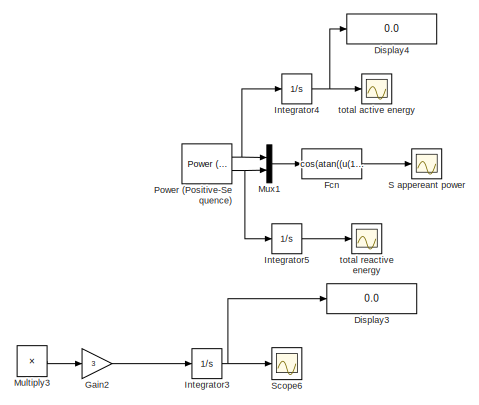
[diagram: root canvas - part 1/7, top center region]
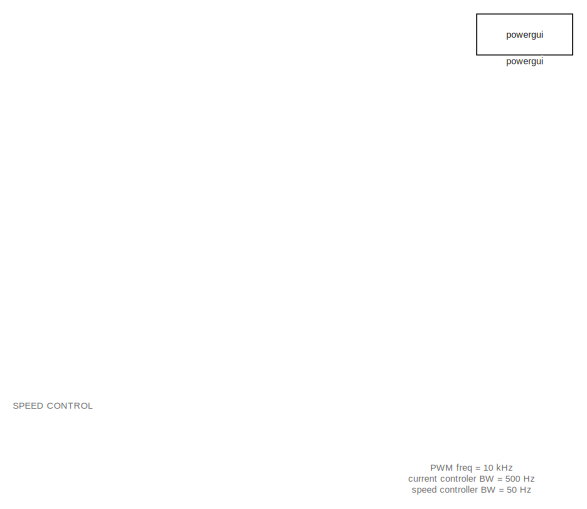
[diagram: root canvas - part 2/7, middle right region]
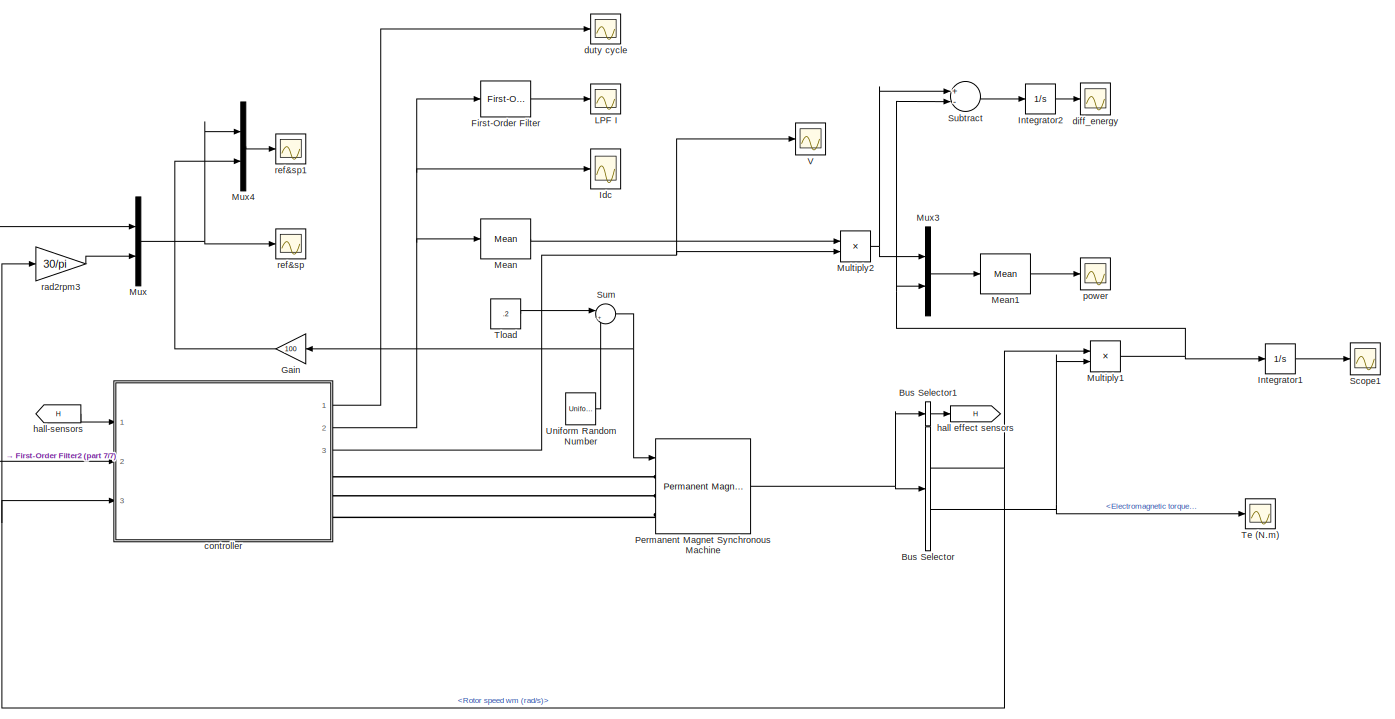
[diagram: root canvas - part 3/7, bottom right region]
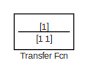
[diagram: root canvas - part 4/7, central region]
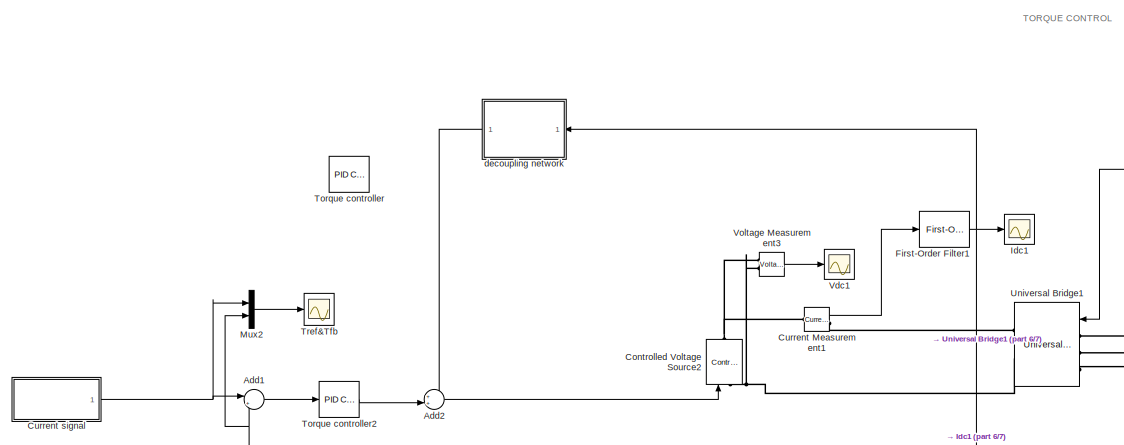
[diagram: root canvas - part 5/7, bottom left region]
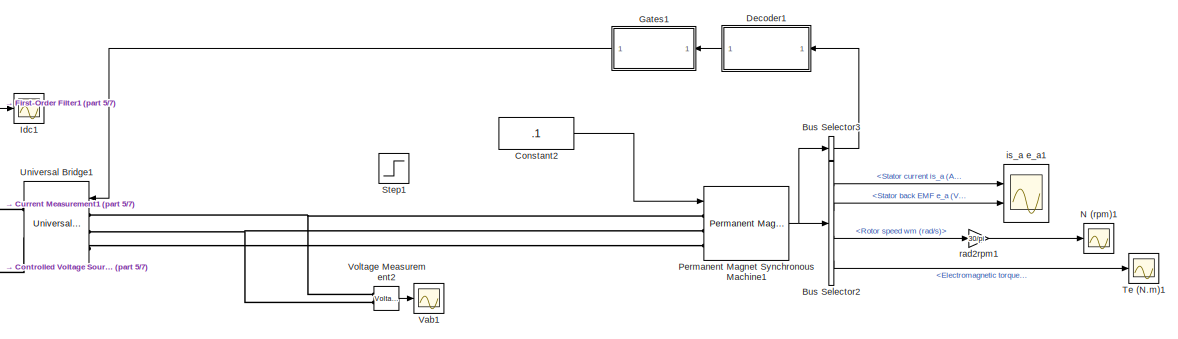
[diagram: root canvas - part 6/7, bottom left region]
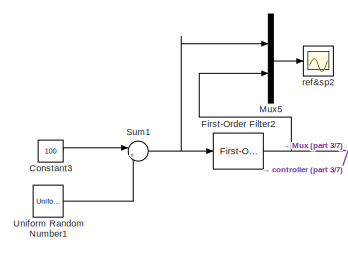
[diagram: root canvas - part 7/7, bottom right region]
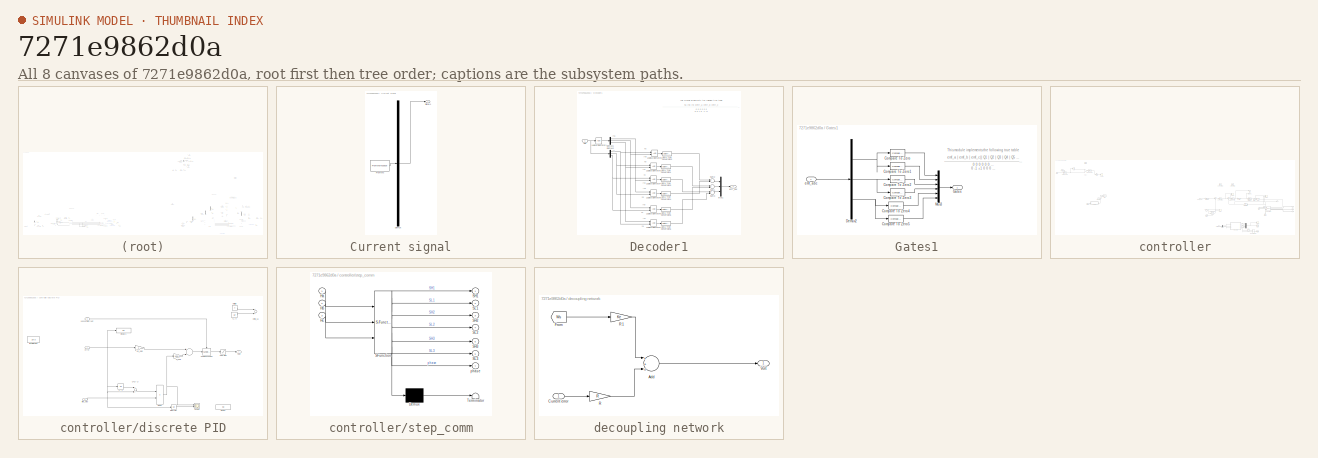
[diagram: thumbnail index - all 8 canvases of the model, root first then tree order]
MODEL slx_7271e9862d0a
KIND model
CONFIG AbsTol = auto
CONFIG EnableMultiTasking = on
CONFIG FixedStep = Ts
CONFIG InitFcn = Power = 425;\n\nR=.64;\nL=1e-3;\nJ=.142e-3;\nB=0;\nKm=1.194;\nVdc=60;\n\nTs=1e-6;\nP=16;\n\n\n\n\n\n\n\n\n\n\n\n\n\n\n\n\n\n
CONFIG MaxStep = .000001
CONFIG MinStep = auto
CONFIG RelTol = 1e-3
CONFIG SampleTimeConstraint = Unconstrained
CONFIG Solver = ode45
CONFIG SolverName = ode45
CONFIG StartTime = 0.0
CONFIG StopTime = 2
BLOCK [Sum] Add1
  Commented = on
  IconShape = round
  InputSameDT = off
  Inputs = |+-
  OutDataTypeStr = Inherit: Inherit via internal rule
  Ports = [2, 1]
  SaturateOnIntegerOverflow = off
BLOCK [Sum] Add2
  Commented = on
  IconShape = round
  InputSameDT = off
  Inputs = ++|
  OutDataTypeStr = Inherit: Inherit via internal rule
  Ports = [2, 1]
  SaturateOnIntegerOverflow = off
BLOCK [BusSelector] Bus Selector
  OutputAsBus = off
  OutputSignals = Rotor speed wm (rad/s),Electromagnetic torque Te (N*m)
  Ports = [1, 2]
BLOCK [BusSelector] Bus Selector1
  OutputAsBus = on
  OutputSignals = Hall effect signal h_a,Hall effect signal h_b,Hall effect signal h_c
  Ports = [1, 1]
BLOCK [BusSelector] Bus Selector2
  Commented = on
  OutputAsBus = off
  OutputSignals = Stator current is_a (A),Stator back EMF e_a (V),Rotor speed wm (rad/s),Electromagnetic torque Te (N*m)
  Ports = [1, 4]
BLOCK [BusSelector] Bus Selector3
  Commented = on
  OutputAsBus = on
  OutputSignals = Hall effect signal h_a,Hall effect signal h_b,Hall effect signal h_c
  Ports = [1, 1]
BLOCK [Constant] Constant2
  Commented = on
  Value = .1
BLOCK [Constant] Constant3
  Value = 100
BLOCK [Reference] Controlled Voltage Source2  REF=powerlib/Electrical
Sources/Controlled Voltage Source
  Commented = on
  Ports = [1, 0, 0, 0, 0, 1, 1]
  SourceBlock = powerlib/Electrical\nSources/Controlled Voltage Source
  SourceProductBaseCode = PS
  SourceProductName = Simscape Power Systems
  SourceType = Controlled Voltage Source
BLOCK [Reference] Current Measurement1  REF=powerlib/Measurements/Current Measurement
  Commented = on
  Ports = [0, 1, 0, 0, 0, 1, 1]
  SourceBlock = powerlib/Measurements/Current Measurement
  SourceProductBaseCode = PS
  SourceProductName = Simscape Power Systems
  SourceType = Current Measurement
BLOCK [SubSystem] Current signal
  ClipboardFcn = sigbuilder_block('clipboard');
  CloseFcn = sigbuilder_block('close');
  Commented = on
  ContinueFcn = sigbuilder_block('continue');
  CopyFcn = sigbuilder_block('copy');
  DeleteFcn = sigbuilder_block('delete');
  LoadFcn = sigbuilder_block('load');
  MaskHideContents = on
  ModelCloseFcn = sigbuilder_block('modelClose');
  NameChangeFcn = sigbuilder_block('namechange');
  OpenFcn = sigbuilder_block('open',[437.25 180 550.5 395.25 ]);
  PauseFcn = sigbuilder_block('pause');
  Ports = [0, 1]
  PreSaveFcn = sigbuilder_block('preSave');
  RequestExecContextInheritance = off
  StartFcn = sigbuilder_block('start');
  StopFcn = sigbuilder_block('stop');
  Tag = STV Subsys
BLOCK [Demux] Current signal/Demux
  Outputs = 1
  Ports = [1, 1]
  Tag = STV Demux
BLOCK [FromWorkspace] Current signal/FromWs
  SampleTime = 0
  Tag = STV FromWs
  VariableName = tuvar
  ZeroCross = on
BLOCK [Outport] Current signal/Signal 1
  IconDisplay = Port number
  Tag = STV Outport
BLOCK [SubSystem] Decoder1
  Commented = on
  Ports = [1, 1]
  RequestExecContextInheritance = off
BLOCK [DataTypeConversion] Decoder1/Data Type Conversion1
  RndMeth = Floor
  SaturateOnIntegerOverflow = off
BLOCK [DataTypeConversion] Decoder1/Data Type Conversion2
  RndMeth = Floor
  SaturateOnIntegerOverflow = off
BLOCK [DataTypeConversion] Decoder1/Data Type Conversion3
  RndMeth = Floor
  SaturateOnIntegerOverflow = off
BLOCK [DataTypeConversion] Decoder1/Data Type Conversion4
  RndMeth = Floor
  SaturateOnIntegerOverflow = off
BLOCK [DataTypeConversion] Decoder1/Data Type Conversion5
  RndMeth = Floor
  SaturateOnIntegerOverflow = off
BLOCK [DataTypeConversion] Decoder1/Data Type Conversion6
  RndMeth = Floor
  SaturateOnIntegerOverflow = off
BLOCK [Demux] Decoder1/Demux1
  DisplayOption = bar
  Outputs = 3
  Ports = [1, 3]
BLOCK [Demux] Decoder1/Demux2
  DisplayOption = bar
  Outputs = 3
  Ports = [1, 3]
BLOCK [Inport] Decoder1/Hall 
  IconDisplay = Port number
BLOCK [Logic] Decoder1/Logical Operator1
  AllPortsSameDT = off
  Operator = NOT
  OutDataTypeStr = boolean
  Ports = [1, 1]
BLOCK [Logic] Decoder1/Logical Operator2
  AllPortsSameDT = off
  OutDataTypeStr = boolean
  Ports = [2, 1]
BLOCK [Logic] Decoder1/Logical Operator3
  AllPortsSameDT = off
  OutDataTypeStr = boolean
  Ports = [2, 1]
BLOCK [Logic] Decoder1/Logical Operator4
  AllPortsSameDT = off
  OutDataTypeStr = boolean
  Ports = [2, 1]
BLOCK [Logic] Decoder1/Logical Operator5
  AllPortsSameDT = off
  OutDataTypeStr = boolean
  Ports = [2, 1]
BLOCK [Logic] Decoder1/Logical Operator6
  AllPortsSameDT = off
  OutDataTypeStr = boolean
  Ports = [2, 1]
BLOCK [Logic] Decoder1/Logical Operator7
  AllPortsSameDT = off
  OutDataTypeStr = boolean
  Ports = [2, 1]
BLOCK [Mux] Decoder1/Mux1
  DisplayOption = bar
  Inputs = 3
  Ports = [3, 1]
BLOCK [Sum] Decoder1/Sum1
  InputSameDT = off
  Inputs = +-
  OutDataTypeStr = double
  Ports = [2, 1]
  SaturateOnIntegerOverflow = off
BLOCK [Sum] Decoder1/Sum2
  InputSameDT = off
  Inputs = +-
  OutDataTypeStr = double
  Ports = [2, 1]
  SaturateOnIntegerOverflow = off
BLOCK [Sum] Decoder1/Sum3
  InputSameDT = off
  Inputs = +-
  OutDataTypeStr = double
  Ports = [2, 1]
  SaturateOnIntegerOverflow = off
BLOCK [Outport] Decoder1/emf_abc
  IconDisplay = Port number
BLOCK [Display] Display3
  Commented = on
  Decimation = 1
  Ports = [1]
BLOCK [Display] Display4
  Commented = on
  Decimation = 1
  Ports = [1]
BLOCK [Fcn] Fcn
  Commented = on
  Expr = cos(atan((u(1))/(u(2))))
BLOCK [Reference] First-Order Filter  REF=powerlib_meascontrol/Filters/First-Order
Filter
  Ports = [1, 1]
  SourceBlock = powerlib_meascontrol/Filters/First-Order\nFilter
  SourceProductBaseCode = PS
  SourceProductName = Simscape Power Systems
  SourceType = First-Order Filter
BLOCK [Reference] First-Order Filter1  REF=powerlib_meascontrol/Filters/First-Order
Filter
  Commented = on
  Ports = [1, 1]
  SourceBlock = powerlib_meascontrol/Filters/First-Order\nFilter
  SourceProductBaseCode = PS
  SourceProductName = Simscape Power Systems
  SourceType = First-Order Filter
BLOCK [Reference] First-Order Filter2  REF=powerlib_meascontrol/Filters/First-Order
Filter
  Ports = [1, 1]
  SourceBlock = powerlib_meascontrol/Filters/First-Order\nFilter
  SourceProductBaseCode = PS
  SourceProductName = Simscape Power Systems
  SourceType = First-Order Filter
BLOCK [Gain] Gain
  Gain = 100
  OutDataTypeStr = Inherit: Inherit via internal rule
  ParamDataTypeStr = Inherit: Inherit via internal rule
  SaturateOnIntegerOverflow = off
BLOCK [Gain] Gain2
  Commented = on
  Gain = 3
  OutDataTypeStr = Inherit: Inherit via internal rule
  ParamDataTypeStr = Inherit: Inherit via internal rule
  SaturateOnIntegerOverflow = off
BLOCK [SubSystem] Gates1
  Commented = on
  Ports = [1, 1]
  RequestExecContextInheritance = off
BLOCK [Reference] Gates1/Compare To Zero  REF=simulink/Logic and Bit
Operations/Compare
To Zero
  Ports = [1, 1]
  SourceBlock = simulink/Logic and Bit\nOperations/Compare\nTo Zero
  SourceProductBaseCode = SL
  SourceProductName = Simulink
  SourceType = Compare To Zero
BLOCK [Reference] Gates1/Compare To Zero1  REF=simulink/Logic and Bit
Operations/Compare
To Zero
  Ports = [1, 1]
  SourceBlock = simulink/Logic and Bit\nOperations/Compare\nTo Zero
  SourceProductBaseCode = SL
  SourceProductName = Simulink
  SourceType = Compare To Zero
BLOCK [Reference] Gates1/Compare To Zero2  REF=simulink/Logic and Bit
Operations/Compare
To Zero
  Ports = [1, 1]
  SourceBlock = simulink/Logic and Bit\nOperations/Compare\nTo Zero
  SourceProductBaseCode = SL
  SourceProductName = Simulink
  SourceType = Compare To Zero
BLOCK [Reference] Gates1/Compare To Zero3  REF=simulink/Logic and Bit
Operations/Compare
To Zero
  Ports = [1, 1]
  SourceBlock = simulink/Logic and Bit\nOperations/Compare\nTo Zero
  SourceProductBaseCode = SL
  SourceProductName = Simulink
  SourceType = Compare To Zero
BLOCK [Reference] Gates1/Compare To Zero4  REF=simulink/Logic and Bit
Operations/Compare
To Zero
  Ports = [1, 1]
  SourceBlock = simulink/Logic and Bit\nOperations/Compare\nTo Zero
  SourceProductBaseCode = SL
  SourceProductName = Simulink
  SourceType = Compare To Zero
BLOCK [Reference] Gates1/Compare To Zero5  REF=simulink/Logic and Bit
Operations/Compare
To Zero
  Ports = [1, 1]
  SourceBlock = simulink/Logic and Bit\nOperations/Compare\nTo Zero
  SourceProductBaseCode = SL
  SourceProductName = Simulink
  SourceType = Compare To Zero
BLOCK [Demux] Gates1/Demux2
  DisplayOption = bar
  Outputs = 3
  Ports = [1, 3]
BLOCK [Outport] Gates1/Gates
  IconDisplay = Port number
BLOCK [Mux] Gates1/Mux3
  DisplayOption = bar
  Inputs = 6
  Ports = [6, 1]
BLOCK [Inport] Gates1/emf_abc 
  IconDisplay = Port number
BLOCK [Scope] Idc 
  Floating = off
  NumInputPorts = 1
  Ports = [1]
  ScopeSpecificationString = Simulink.scopes.TimeScopeBlockCfg('CurrentConfiguration', extmgr.ConfigurationSet(extmgr.Configuration('Core','General UI',true),extmgr.Configuration('Core','Source UI',true),extmgr.Configuration('Sources','WiredSimulink',true,'DataLoggingVariableName','ScopeData7','DataLoggingSaveFormat','Structure','DataLoggingDecimation','1','DataLoggingDecimateData',true),extmgr.Configuration('Visuals','Time D...<+1754ch>
BLOCK [Scope] Idc1
  Commented = on
  Floating = off
  NumInputPorts = 1
  Ports = [1]
  ScopeSpecificationString = C++SS(StrPVP('Location','[5, 34, 1925, 1058]'),StrPVP('Open','off'),StrPVP('ZoomMode','yonly'),MxPVP('AxesTitles',53,'struct(''axes1'',''DC bus voltage'')'),MxPVP('ScopeGraphics',56,'struct(''FigureColor'',''[0.5 0.5 0.5]'',''AxesColor'',''[0 0 0]'',''AxesTickColor'',''[1 1 1]'',''LineColors'',''[1 1 0;1 0 1;0 1 1;1 0 0;0 1 0;0 0 1]'',''LineStyles'',''-|-|-|-|-|-'',''LineWidths'',''[0.5 0.5 0.5 0....<+363ch>
BLOCK [Integrator] Integrator1
  Ports = [1, 1]
BLOCK [Integrator] Integrator2
  Ports = [1, 1]
BLOCK [Integrator] Integrator3
  Commented = on
  Ports = [1, 1]
BLOCK [Integrator] Integrator4
  Commented = on
  Ports = [1, 1]
BLOCK [Integrator] Integrator5
  Commented = on
  Ports = [1, 1]
BLOCK [Scope] LPF I
  Floating = off
  NumInputPorts = 1
  Ports = [1]
  ScopeSpecificationString = Simulink.scopes.TimeScopeBlockCfg('CurrentConfiguration', extmgr.ConfigurationSet(extmgr.Configuration('Core','General UI',true),extmgr.Configuration('Core','Source UI',true),extmgr.Configuration('Sources','WiredSimulink',true,'DataLoggingVariableName','ScopeData1','DataLoggingSaveFormat','Structure','DataLoggingDecimation','1','DataLoggingDecimateData',true),extmgr.Configuration('Visuals','Time D...<+1754ch>
BLOCK [Reference] Mean  REF=powerlib_meascontrol/Measurements/Mean
  Ports = [1, 1]
  SourceBlock = powerlib_meascontrol/Measurements/Mean
  SourceProductBaseCode = PS
  SourceProductName = Simscape Power Systems
  SourceType = Mean
BLOCK [Reference] Mean1  REF=powerlib_meascontrol/Measurements/Mean
  Ports = [1, 1]
  SourceBlock = powerlib_meascontrol/Measurements/Mean
  SourceProductBaseCode = PS
  SourceProductName = Simscape Power Systems
  SourceType = Mean
BLOCK [Product] Multiply1
  InputSameDT = off
  OutDataTypeStr = Inherit: Inherit via internal rule
  Ports = [2, 1]
  RndMeth = Floor
  SaturateOnIntegerOverflow = off
BLOCK [Product] Multiply2
  InputSameDT = off
  OutDataTypeStr = Inherit: Inherit via internal rule
  Ports = [2, 1]
  RndMeth = Floor
  SaturateOnIntegerOverflow = off
BLOCK [Product] Multiply3
  Commented = on
  InputSameDT = off
  OutDataTypeStr = Inherit: Inherit via internal rule
  Ports = [2, 1]
  RndMeth = Floor
  SaturateOnIntegerOverflow = off
BLOCK [Mux] Mux
  DisplayOption = bar
  Inputs = 2
  Ports = [2, 1]
BLOCK [Mux] Mux1
  Commented = on
  DisplayOption = bar
  Inputs = 2
  Ports = [2, 1]
BLOCK [Mux] Mux2
  Commented = on
  DisplayOption = bar
  Inputs = 2
  Ports = [2, 1]
BLOCK [Mux] Mux3
  DisplayOption = bar
  Inputs = 2
  Ports = [2, 1]
BLOCK [Mux] Mux4
  DisplayOption = bar
  Inputs = 2
  Ports = [2, 1]
BLOCK [Mux] Mux5
  DisplayOption = bar
  Inputs = 2
  Ports = [2, 1]
BLOCK [Scope] N (rpm)1
  Commented = on
  Floating = off
  NumInputPorts = 1
  Ports = [1]
  ScopeSpecificationString = C++SS(StrPVP('Location','[5, 34, 1925, 1058]'),StrPVP('Open','off'),StrPVP('ZoomMode','yonly'),MxPVP('AxesTitles',53,'struct(''axes1'',''Rotor speed (rpm)'')'),MxPVP('ScopeGraphics',56,'struct(''FigureColor'',''[0.5 0.5 0.5]'',''AxesColor'',''[0 0 0]'',''AxesTickColor'',''[1 1 1]'',''LineColors'',''[1 1 0;1 0 1;0 1 1;1 0 0;0 1 0;0 0 1]'',''LineStyles'',''-|-|-|-|-|-'',''LineWidths'',''[0.5 0.5 0.5...<+394ch>
BLOCK [Reference] Permanent Magnet Synchronous Machine  REF=powerlib/Machines/Permanent Magnet
Synchronous Machine
  Ports = [1, 1, 0, 0, 0, 3]
  SourceBlock = powerlib/Machines/Permanent Magnet\nSynchronous Machine
  SourceProductBaseCode = PS
  SourceProductName = Simscape Power Systems
  SourceType = Permanent Magnet Synchronous Machine
BLOCK [Reference] Permanent Magnet Synchronous Machine1  REF=powerlib/Machines/Permanent Magnet
Synchronous Machine
  Commented = on
  Ports = [1, 1, 0, 0, 0, 3]
  SourceBlock = powerlib/Machines/Permanent Magnet\nSynchronous Machine
  SourceProductBaseCode = PS
  SourceProductName = Simscape Power Systems
  SourceType = Permanent Magnet Synchronous Machine
BLOCK [Reference] Power (Positive-Sequence)  REF=powerlib_meascontrol/Measurements/Power
(Positive-Sequence)
  Commented = on
  Ports = [2, 2]
  SourceBlock = powerlib_meascontrol/Measurements/Power\n(Positive-Sequence)
  SourceProductBaseCode = PS
  SourceProductName = Simscape Power Systems
  SourceType = Power (Positive-Sequence)
BLOCK [Scope] S appereant power
  Commented = on
  Floating = off
  NumInputPorts = 1
  Ports = [1]
  ScopeSpecificationString = Simulink.scopes.TimeScopeBlockCfg('CurrentConfiguration', extmgr.ConfigurationSet(extmgr.Configuration('Core','General UI',true),extmgr.Configuration('Core','Source UI',true),extmgr.Configuration('Sources','WiredSimulink',true,'DataLoggingSaveFormat','Structure','DataLoggingDecimation','1','DataLoggingDecimateData',true,'DataLoggingVariableName','ScopeData3'),extmgr.Configuration('Visuals','Time D...<+1737ch>
BLOCK [Scope] Scope1
  Floating = off
  NumInputPorts = 1
  Ports = [1]
  ScopeSpecificationString = Simulink.scopes.TimeScopeBlockCfg('CurrentConfiguration', extmgr.ConfigurationSet(extmgr.Configuration('Core','General UI',true),extmgr.Configuration('Core','Source UI',true),extmgr.Configuration('Sources','WiredSimulink',true,'DataLoggingVariableName','ScopeData2'),extmgr.Configuration('Visuals','Time Domain',true,'SerializedDisplays',{struct('MinYLimReal','-1.81238','MaxYLimReal','14.43803','YLa...<+1374ch>
BLOCK [Scope] Scope6
  Commented = on
  Floating = off
  NumInputPorts = 1
  Ports = [1]
  ScopeSpecificationString = Simulink.scopes.TimeScopeBlockCfg('CurrentConfiguration', extmgr.ConfigurationSet(extmgr.Configuration('Core','General UI',true),extmgr.Configuration('Core','Source UI',true),extmgr.Configuration('Sources','WiredSimulink',true,'DataLoggingVariableName','ScopeData2'),extmgr.Configuration('Visuals','Time Domain',true),extmgr.Configuration('Tools','Plot Navigation',true),extmgr.Configuration('Tools',...<+40ch>
BLOCK [Step] Step1
  After = .1
  Commented = on
  SampleTime = 0
BLOCK [Sum] Subtract
  InputSameDT = off
  Inputs = +-
  OutDataTypeStr = Inherit: Inherit via internal rule
  Ports = [2, 1]
  SaturateOnIntegerOverflow = off
BLOCK [Sum] Sum
  IconShape = round
  InputSameDT = off
  Inputs = |++
  OutDataTypeStr = Inherit: Inherit via internal rule
  Ports = [2, 1]
  SaturateOnIntegerOverflow = off
BLOCK [Sum] Sum1
  IconShape = round
  InputSameDT = off
  Inputs = |++
  OutDataTypeStr = Inherit: Inherit via internal rule
  Ports = [2, 1]
  SaturateOnIntegerOverflow = off
BLOCK [Scope] Te (N.m)
  Floating = off
  NumInputPorts = 1
  Ports = [1]
  ScopeSpecificationString = Simulink.scopes.TimeScopeBlockCfg('CurrentConfiguration', extmgr.ConfigurationSet(extmgr.Configuration('Core','General UI',true),extmgr.Configuration('Core','Source UI',true),extmgr.Configuration('Sources','WiredSimulink',true,'DataLogging',true,'DataLoggingVariableName','N1','DataLoggingSaveFormat','StructureWithTime','DataLoggingDecimation','1','DataLoggingDecimateData',true),extmgr.Configuratio...<+1814ch>
BLOCK [Scope] Te (N.m)1
  Commented = on
  Floating = off
  NumInputPorts = 1
  Ports = [1]
  ScopeSpecificationString = C++SS(StrPVP('Location','[1, 55, 1921, 1079]'),StrPVP('Open','off'),StrPVP('ZoomMode','xonly'),MxPVP('AxesTitles',53,'struct(''axes1'',''Electromagnetic Torque (Nm)'')'),MxPVP('ScopeGraphics',56,'struct(''FigureColor'',''[0.5 0.5 0.5]'',''AxesColor'',''[0 0 0]'',''AxesTickColor'',''[1 1 1]'',''LineColors'',''[1 1 0;1 0 1;0 1 1;1 0 0;0 1 0;0 0 1]'',''LineStyles'',''-|-|-|-|-|-'',''LineWidths'',''[0...<+406ch>
BLOCK [Constant] Tload
  Value = .2
BLOCK [Reference] Torque controller  REF=simulink/Continuous/PID Controller
  Commented = on
  Ports = [1, 1]
  SourceBlock = simulink/Continuous/PID Controller
  SourceProductBaseCode = SL
  SourceProductName = Simulink
  SourceType = PID 1dof
BLOCK [Reference] Torque controller2  REF=simulink/Continuous/PID Controller
  Commented = on
  Ports = [1, 1]
  SourceBlock = simulink/Continuous/PID Controller
  SourceProductBaseCode = SL
  SourceProductName = Simulink
  SourceType = PID 1dof
BLOCK [TransferFcn] Transfer Fcn
  Denominator = [1 1]
BLOCK [Scope] Tref&Tfb
  Commented = on
  Floating = off
  NumInputPorts = 1
  Ports = [1]
  ScopeSpecificationString = C++SS(StrPVP('Location','[5, 34, 1925, 1058]'),StrPVP('Open','off'),MxPVP('AxesTitles',53,'struct(''axes1'',''%<SignalLabel>'')'),MxPVP('ScopeGraphics',56,'struct(''FigureColor'',''[0.5 0.5 0.5]'',''AxesColor'',''[0 0 0]'',''AxesTickColor'',''[1 1 1]'',''LineColors'',''[1 1 0;1 0 1;0 1 1;1 0 0;0 1 0;0 0 1]'',''LineStyles'',''-|-|-|-|-|-'',''LineWidths'',''[0.5 0.5 0.5 0.5 0.5 0.5]'',''MarkerStyles...<+340ch>
BLOCK [UniformRandomNumber] Uniform Random Number
  Minimum = 0
  SampleTime = .1
BLOCK [UniformRandomNumber] Uniform Random Number1
  Maximum = 200
  Minimum = 0
  SampleTime = 1/100
BLOCK [Reference] Universal Bridge1  REF=powerlib/Power
Electronics/Universal Bridge
  Commented = on
  Ports = [1, 0, 0, 0, 0, 3, 2]
  SourceBlock = powerlib/Power\nElectronics/Universal Bridge
  SourceProductBaseCode = PS
  SourceProductName = Simscape Power Systems
  SourceType = Universal Bridge
BLOCK [Scope] V
  Floating = off
  NumInputPorts = 1
  Ports = [1]
  ScopeSpecificationString = Simulink.scopes.TimeScopeBlockCfg('CurrentConfiguration', extmgr.ConfigurationSet(extmgr.Configuration('Core','General UI',true),extmgr.Configuration('Core','Source UI',true),extmgr.Configuration('Sources','WiredSimulink',true,'DataLoggingVariableName','ScopeData3'),extmgr.Configuration('Visuals','Time Domain',true,'SerializedDisplays',{struct('MinYLimReal','-5.09707','MaxYLimReal','67.23301','YLa...<+1447ch>
BLOCK [Scope] Vab1
  Commented = on
  Floating = off
  NumInputPorts = 1
  Ports = [1]
  ScopeSpecificationString = C++SS(StrPVP('Location','[5, 34, 1925, 1058]'),StrPVP('Open','off'),MxPVP('AxesTitles',53,'struct(''axes1'',''Line-Line voltage Vab'')'),MxPVP('ScopeGraphics',56,'struct(''FigureColor'',''[0.5 0.5 0.5]'',''AxesColor'',''[0 0 0]'',''AxesTickColor'',''[1 1 1]'',''LineColors'',''[1 1 0;1 0 1;0 1 1;1 0 0;0 1 0;0 0 1]'',''LineStyles'',''-|-|-|-|-|-'',''LineWidths'',''[0.5 0.5 0.5 0.5 0.5 0.5]'',''Marke...<+344ch>
BLOCK [Scope] Vdc1
  Commented = on
  Floating = off
  NumInputPorts = 1
  Ports = [1]
  ScopeSpecificationString = C++SS(StrPVP('Location','[1, 55, 1921, 1079]'),StrPVP('Open','off'),StrPVP('ZoomMode','yonly'),MxPVP('AxesTitles',53,'struct(''axes1'',''DC bus voltage'')'),MxPVP('ScopeGraphics',56,'struct(''FigureColor'',''[0.5 0.5 0.5]'',''AxesColor'',''[0 0 0]'',''AxesTickColor'',''[1 1 1]'',''LineColors'',''[1 1 0;1 0 1;0 1 1;1 0 0;0 1 0;0 0 1]'',''LineStyles'',''-|-|-|-|-|-'',''LineWidths'',''[0.5 0.5 0.5 0....<+385ch>
BLOCK [Reference] Voltage Measurement2  REF=powerlib/Measurements/Voltage Measurement
  Commented = on
  Ports = [0, 1, 0, 0, 0, 2]
  SourceBlock = powerlib/Measurements/Voltage Measurement
  SourceProductBaseCode = PS
  SourceProductName = Simscape Power Systems
  SourceType = Voltage Measurement
BLOCK [Reference] Voltage Measurement3  REF=powerlib/Measurements/Voltage Measurement
  Commented = on
  Ports = [0, 1, 0, 0, 0, 2]
  SourceBlock = powerlib/Measurements/Voltage Measurement
  SourceProductBaseCode = PS
  SourceProductName = Simscape Power Systems
  SourceType = Voltage Measurement
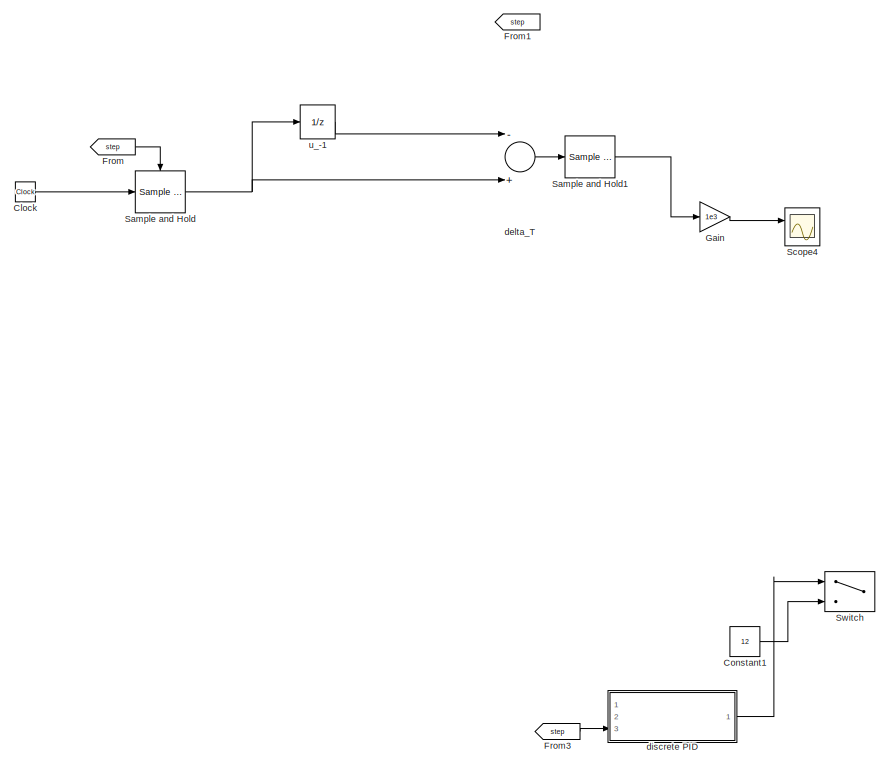
[diagram: controller - part 1/4, top left region]
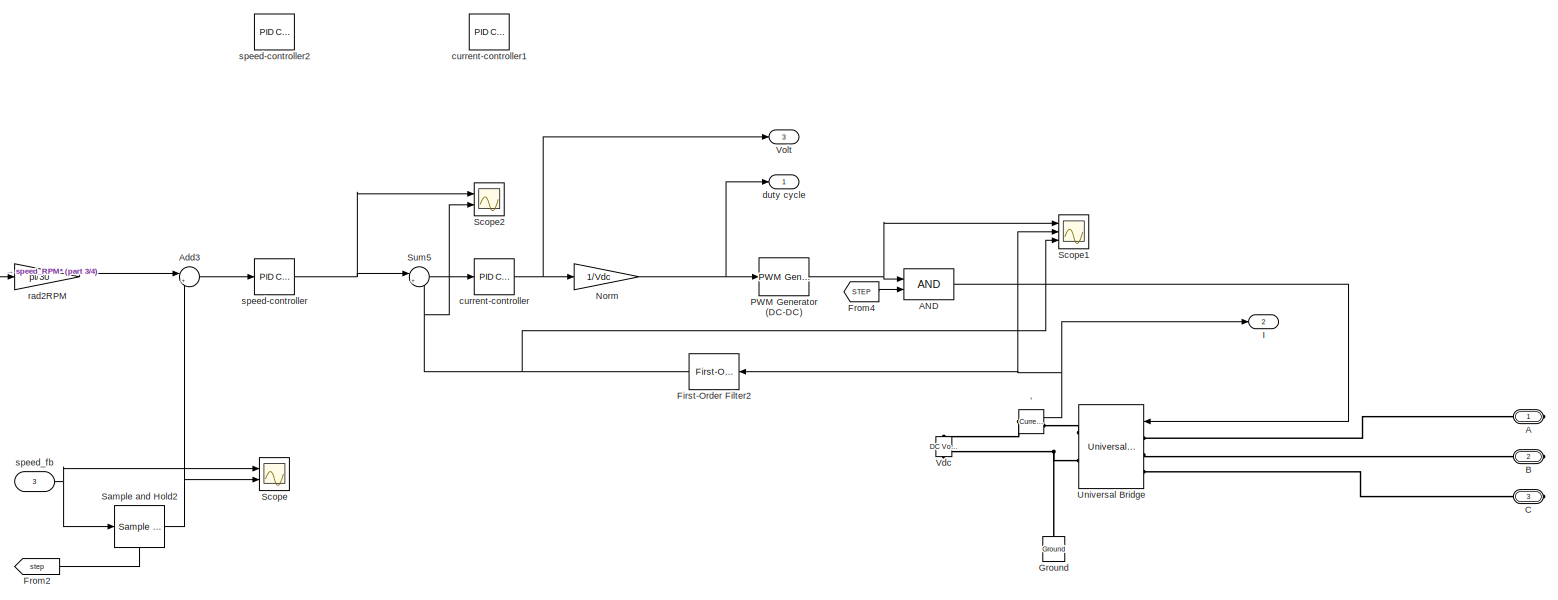
[diagram: controller - part 2/4, middle right region]
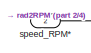
[diagram: controller - part 3/4, central region]
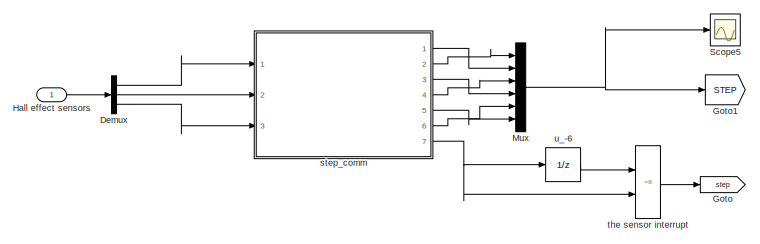
[diagram: controller - part 4/4, bottom right region]
BLOCK [SubSystem] controller
  Ports = [3, 3, 0, 0, 0, 0, 3]
  RequestExecContextInheritance = off
BLOCK [Reference] controller/'  REF=powerlib/Measurements/Current Measurement
  Ports = [0, 1, 0, 0, 0, 1, 1]
  SourceBlock = powerlib/Measurements/Current Measurement
  SourceProductBaseCode = PS
  SourceProductName = Simscape Power Systems
  SourceType = Current Measurement
BLOCK [PMIOPort] controller/A
  Side = Right
BLOCK [Logic] controller/AND
  AllPortsSameDT = off
  OutDataTypeStr = boolean
  Ports = [2, 1]
BLOCK [Sum] controller/Add3
  IconShape = round
  InputSameDT = off
  Inputs = |+-
  OutDataTypeStr = Inherit: Inherit via internal rule
  Ports = [2, 1]
  SaturateOnIntegerOverflow = off
BLOCK [PMIOPort] controller/B
  Port = 2
  Side = Right
BLOCK [PMIOPort] controller/C
  Port = 3
  Side = Right
BLOCK [Clock] controller/Clock
  Commented = on
BLOCK [Constant] controller/Constant1
  Commented = on
  Value = 12
BLOCK [Demux] controller/Demux
  DisplayOption = bar
  Outputs = 3
  Ports = [1, 3]
BLOCK [Reference] controller/First-Order Filter2  REF=powerlib_meascontrol/Filters/First-Order
Filter
  Ports = [1, 1]
  SourceBlock = powerlib_meascontrol/Filters/First-Order\nFilter
  SourceProductBaseCode = PS
  SourceProductName = Simscape Power Systems
  SourceType = First-Order Filter
BLOCK [From] controller/From
  Commented = on
  GotoTag = step
BLOCK [From] controller/From1
  Commented = on
  GotoTag = step
BLOCK [From] controller/From2
  GotoTag = step
BLOCK [From] controller/From3
  Commented = on
  GotoTag = step
BLOCK [From] controller/From4
  GotoTag = STEP
BLOCK [Gain] controller/Gain
  Commented = on
  Gain = 1e3
  OutDataTypeStr = Inherit: Inherit via internal rule
  ParamDataTypeStr = Inherit: Inherit via internal rule
  SaturateOnIntegerOverflow = off
BLOCK [Goto] controller/Goto
  GotoTag = step
BLOCK [Goto] controller/Goto1
  GotoTag = STEP
BLOCK [Reference] controller/Ground  REF=powerlib/Elements/Ground
  Ports = [0, 0, 0, 0, 0, 1]
  SourceBlock = powerlib/Elements/Ground
  SourceProductBaseCode = PS
  SourceProductName = Simscape Power Systems
  SourceType = Ground
BLOCK [Inport] controller/Hall effect sensors
  IconDisplay = Port number
BLOCK [Outport] controller/I
  IconDisplay = Port number
  Port = 2
BLOCK [Mux] controller/Mux
  DisplayOption = bar
  Inputs = 6
  Ports = [6, 1]
BLOCK [Gain] controller/Norm
  Gain = 1/Vdc
  OutDataTypeStr = Inherit: Inherit via internal rule
  ParamDataTypeStr = Inherit: Inherit via internal rule
  SaturateOnIntegerOverflow = off
BLOCK [Reference] controller/PWM Generator (DC-DC)  REF=powerlib_meascontrol/Pulse & Signal
Generators/PWM Generator
(DC-DC)
  Ports = [1, 1]
  SourceBlock = powerlib_meascontrol/Pulse & Signal\nGenerators/PWM Generator\n(DC-DC)
  SourceProductBaseCode = PS
  SourceProductName = Simscape Power Systems
  SourceType = PWM Generator (DC-DC)
BLOCK [Reference] controller/Sample and Hold  REF=dspsigops/Sample
and Hold
  Commented = on
  Ports = [1, 1, 0, 1]
  SourceBlock = dspsigops/Sample\nand Hold
  SourceProductBaseCode = DS
  SourceProductName = DSP System Toolbox
  SourceType = Sample and Hold
BLOCK [Reference] controller/Sample and Hold1  REF=dspsigops/Sample
and Hold
  Commented = on
  Ports = [1, 1, 0, 1]
  SourceBlock = dspsigops/Sample\nand Hold
  SourceProductBaseCode = DS
  SourceProductName = DSP System Toolbox
  SourceType = Sample and Hold
BLOCK [Reference] controller/Sample and Hold2  REF=dspsigops/Sample
and Hold
  Ports = [1, 1, 0, 1]
  SourceBlock = dspsigops/Sample\nand Hold
  SourceProductBaseCode = DS
  SourceProductName = DSP System Toolbox
  SourceType = Sample and Hold
BLOCK [Scope] controller/Scope
  Floating = off
  NumInputPorts = 2
  Ports = [2]
  ScopeSpecificationString = Simulink.scopes.TimeScopeBlockCfg('CurrentConfiguration', extmgr.ConfigurationSet(extmgr.Configuration('Core','General UI',true),extmgr.Configuration('Core','Source UI',true),extmgr.Configuration('Sources','WiredSimulink',true,'DataLoggingVariableName','ScopeData1'),extmgr.Configuration('Visuals','Time Domain',true,'SerializedDisplays',{struct('MinYLimReal','41.0208','MaxYLimReal','54.23382','YLab...<+1460ch>
BLOCK [Scope] controller/Scope1
  Floating = off
  NumInputPorts = 3
  Ports = [3]
  ScopeSpecificationString = Simulink.scopes.TimeScopeBlockCfg('CurrentConfiguration', extmgr.ConfigurationSet(extmgr.Configuration('Core','General UI',true),extmgr.Configuration('Core','Source UI',true),extmgr.Configuration('Sources','WiredSimulink',true,'DataLoggingVariableName','ScopeData1'),extmgr.Configuration('Visuals','Time Domain',true,'SerializedDisplays',{struct('MinYLimReal','-2.16192','MaxYLimReal','2.15094','YLab...<+1483ch>
BLOCK [Scope] controller/Scope2
  Floating = off
  NumInputPorts = 2
  Ports = [2]
  ScopeSpecificationString = Simulink.scopes.TimeScopeBlockCfg('CurrentConfiguration', extmgr.ConfigurationSet(extmgr.Configuration('Core','General UI',true),extmgr.Configuration('Core','Source UI',true),extmgr.Configuration('Sources','WiredSimulink',true,'DataLoggingVariableName','ScopeData2'),extmgr.Configuration('Visuals','Time Domain',true,'SerializedDisplays',{struct('MinYLimReal','-1.86142','MaxYLimReal','12.88919','YLa...<+1473ch>
BLOCK [Scope] controller/Scope4
  Commented = on
  Floating = off
  NumInputPorts = 2
  Ports = [2]
  ScopeSpecificationString = Simulink.scopes.TimeScopeBlockCfg('CurrentConfiguration', extmgr.ConfigurationSet(extmgr.Configuration('Core','General UI',true),extmgr.Configuration('Core','Source UI',true),extmgr.Configuration('Sources','WiredSimulink',true,'DataLoggingVariableName','ScopeData4'),extmgr.Configuration('Visuals','Time Domain',true,'SerializedDisplays',{struct('MinYLimReal','-1.489','MaxYLimReal','13.401','YLabelR...<+1445ch>
BLOCK [Scope] controller/Scope5
  Floating = off
  NumInputPorts = 1
  Ports = [1]
  ScopeSpecificationString = Simulink.scopes.TimeScopeBlockCfg('CurrentConfiguration', extmgr.ConfigurationSet(extmgr.Configuration('Core','General UI',true),extmgr.Configuration('Core','Source UI',true),extmgr.Configuration('Sources','WiredSimulink',true,'DataLoggingVariableName','ScopeData2'),extmgr.Configuration('Visuals','Time Domain',true,'SerializedDisplays',{struct('MinYLimReal','-0.125','MaxYLimReal','1.125','YLabelRe...<+1493ch>
BLOCK [Sum] controller/Sum5
  IconShape = round
  InputSameDT = off
  Inputs = |+-
  OutDataTypeStr = Inherit: Inherit via internal rule
  Ports = [2, 1]
  SaturateOnIntegerOverflow = off
BLOCK [Switch] controller/Switch
  Commented = on
  Criteria = u2 > Threshold
  InputSameDT = off
  SaturateOnIntegerOverflow = off
  Threshold = .01
BLOCK [Reference] controller/Universal Bridge  REF=powerlib/Power
Electronics/Universal Bridge
  Ports = [1, 0, 0, 0, 0, 3, 2]
  SourceBlock = powerlib/Power\nElectronics/Universal Bridge
  SourceProductBaseCode = PS
  SourceProductName = Simscape Power Systems
  SourceType = Universal Bridge
BLOCK [Reference] controller/Vdc  REF=powerlib/Electrical
Sources/DC Voltage Source
  Ports = [0, 0, 0, 0, 0, 1, 1]
  SourceBlock = powerlib/Electrical\nSources/DC Voltage Source
  SourceProductBaseCode = PS
  SourceProductName = Simscape Power Systems
  SourceType = DC Voltage Source
BLOCK [Outport] controller/Volt
  IconDisplay = Port number
  Port = 3
BLOCK [Reference] controller/current-controller  REF=simulink/Continuous/PID Controller
  Ports = [1, 1]
  SourceBlock = simulink/Continuous/PID Controller
  SourceProductBaseCode = SL
  SourceProductName = Simulink
  SourceType = PID 1dof
BLOCK [Reference] controller/current-controller1  REF=simulink/Continuous/PID Controller
  Ports = [1, 1]
  SourceBlock = simulink/Continuous/PID Controller
  SourceProductBaseCode = SL
  SourceProductName = Simulink
  SourceType = PID 1dof
BLOCK [Sum] controller/delta_T
  Commented = on
  InputSameDT = off
  Inputs = -+
  OutDataTypeStr = Inherit: Inherit via internal rule
  Ports = [2, 1]
  SaturateOnIntegerOverflow = off
BLOCK [SubSystem] controller/discrete PID
  Commented = on
  Ports = [3, 1]
  RequestExecContextInheritance = off
BLOCK [Sum] controller/discrete PID/ 
  InputSameDT = off
  Inputs = 2
  OutDataTypeStr = Inherit: Inherit via internal rule
  Ports = [2, 1]
  SaturateOnIntegerOverflow = off
BLOCK [Display] controller/discrete PID/Display
  Decimation = 1
  Ports = [1]
BLOCK [Display] controller/discrete PID/Display1
  Decimation = 1
  Ports = [1]
BLOCK [Product] controller/discrete PID/Divide
  InputSameDT = off
  Inputs = */
  OutDataTypeStr = Inherit: Inherit via internal rule
  Ports = [2, 1]
  RndMeth = Floor
  SaturateOnIntegerOverflow = off
BLOCK [Integrator] controller/discrete PID/Integrator
  Ports = [1, 1]
BLOCK [Gain] controller/discrete PID/Ki_gain
  Gain = .109*.1
  OutDataTypeStr = Inherit: Inherit via internal rule
  ParamDataTypeStr = Inherit: Inherit via internal rule
  SaturateOnIntegerOverflow = off
BLOCK [Gain] controller/discrete PID/Kp_gain 
  Gain = .1
  OutDataTypeStr = Inherit: Inherit via internal rule
  ParamDataTypeStr = Inherit: Inherit via internal rule
  SaturateOnIntegerOverflow = off
BLOCK [Product] controller/discrete PID/Multiply
  Commented = on
  InputSameDT = off
  OutDataTypeStr = Inherit: Inherit via internal rule
  Ports = [2, 1]
  RndMeth = Floor
  SaturateOnIntegerOverflow = off
BLOCK [Outport] controller/discrete PID/Out1
  IconDisplay = Port number
BLOCK [Reference] controller/discrete PID/Sample and Hold1  REF=dspsigops/Sample
and Hold
  Ports = [1, 1, 0, 1]
  SourceBlock = dspsigops/Sample\nand Hold
  SourceProductBaseCode = DS
  SourceProductName = DSP System Toolbox
  SourceType = Sample and Hold
BLOCK [Saturate] controller/discrete PID/Saturation
  InputPortMap = u0
  LowerLimit = 0
  Ports = [1, 1]
  UpperLimit = Vdc
BLOCK [Scope] controller/discrete PID/Scope
  Floating = off
  NumInputPorts = 2
  Ports = [2]
  ScopeSpecificationString = Simulink.scopes.TimeScopeBlockCfg('CurrentConfiguration', extmgr.ConfigurationSet(extmgr.Configuration('Core','General UI',true),extmgr.Configuration('Core','Source UI',true),extmgr.Configuration('Sources','WiredSimulink',true,'DataLoggingVariableName','ScopeData1'),extmgr.Configuration('Visuals','Time Domain',true,'SerializedDisplays',{struct('MinYLimReal','-15995.41163','MaxYLimReal','36342.6773...<+1480ch>
BLOCK [Sum] controller/discrete PID/U+U(-1)
  InputSameDT = off
  OutDataTypeStr = Inherit: Inherit via internal rule
  Ports = [2, 1]
  SaturateOnIntegerOverflow = off
BLOCK [Sum] controller/discrete PID/delta_U1
  Commented = on
  InputSameDT = off
  OutDataTypeStr = Inherit: Inherit via internal rule
  Ports = [2, 1]
  SaturateOnIntegerOverflow = off
BLOCK [Inport] controller/discrete PID/error
  IconDisplay = Port number
BLOCK [Constant] controller/discrete PID/fixed time step
  Value = 1e-3
BLOCK [Inport] controller/discrete PID/sensor interrupt
  IconDisplay = Port number
  Port = 3
BLOCK [Inport] controller/discrete PID/time_step
  IconDisplay = Port number
  Port = 2
BLOCK [UnitDelay] controller/discrete PID/u_-1
  InputProcessing = Elements as channels (sample based)
  SampleTime = -1
BLOCK [UnitDelay] controller/discrete PID/u_-3
  Commented = on
  InputProcessing = Elements as channels (sample based)
  SampleTime = -1
BLOCK [Outport] controller/duty cycle
  IconDisplay = Port number
BLOCK [Gain] controller/rad2RPM
  Gain = pi/30
  OutDataTypeStr = Inherit: Inherit via internal rule
  ParamDataTypeStr = Inherit: Inherit via internal rule
  SaturateOnIntegerOverflow = off
BLOCK [Reference] controller/speed-controller  REF=simulink/Continuous/PID Controller
  Ports = [1, 1]
  SourceBlock = simulink/Continuous/PID Controller
  SourceProductBaseCode = SL
  SourceProductName = Simulink
  SourceType = PID 1dof
BLOCK [Reference] controller/speed-controller2  REF=simulink/Continuous/PID Controller
  Ports = [1, 1]
  SourceBlock = simulink/Continuous/PID Controller
  SourceProductBaseCode = SL
  SourceProductName = Simulink
  SourceType = PID 1dof
BLOCK [Inport] controller/speed_RPM*
  IconDisplay = Port number
  Port = 2
BLOCK [Inport] controller/speed_fb
  IconDisplay = Port number
  Port = 3
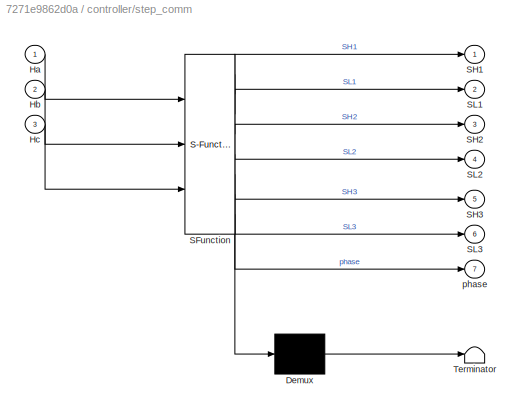
BLOCK [SubSystem] controller/step_comm
  ErrorFcn = Stateflow.Translate.translate
  PermitHierarchicalResolution = ExplicitOnly
  Ports = [3, 7]
  RequestExecContextInheritance = off
  SFBlockType = MATLAB Function
  TreatAsAtomicUnit = on
BLOCK [Demux] controller/step_comm/ Demux 
  Outputs = 1
  Ports = [1, 1]
BLOCK [S-Function] controller/step_comm/ SFunction 
  EnableBusSupport = on
  FunctionName = sf_sfun
  PortCounts = [3 8]
  Ports = [3, 8]
  SFcnIsStateOwnerBlock = off
  SFunctionDeploymentMode = off
  Tag = Stateflow S-Function BLDC_speedcontrol_PWM 2
BLOCK [Terminator] controller/step_comm/ Terminator 
BLOCK [Inport] controller/step_comm/Ha
  IconDisplay = Port number
BLOCK [Inport] controller/step_comm/Hb
  IconDisplay = Port number
  Port = 2
BLOCK [Inport] controller/step_comm/Hc
  IconDisplay = Port number
  Port = 3
BLOCK [Outport] controller/step_comm/SH1
  IconDisplay = Port number
BLOCK [Outport] controller/step_comm/SH2
  IconDisplay = Port number
  Port = 3
BLOCK [Outport] controller/step_comm/SH3
  IconDisplay = Port number
  Port = 5
BLOCK [Outport] controller/step_comm/SL1
  IconDisplay = Port number
  Port = 2
BLOCK [Outport] controller/step_comm/SL2
  IconDisplay = Port number
  Port = 4
BLOCK [Outport] controller/step_comm/SL3
  IconDisplay = Port number
  Port = 6
BLOCK [Outport] controller/step_comm/phase
  IconDisplay = Port number
  Port = 7
BLOCK [RelationalOperator] controller/the sensor interrupt
  InputSameDT = off
  Operator = ~=
  OutDataTypeStr = boolean
  Ports = [2, 1]
  RndMeth = Simplest
BLOCK [UnitDelay] controller/u_-1
  Commented = on
  InputProcessing = Elements as channels (sample based)
  SampleTime = -1
BLOCK [UnitDelay] controller/u_-6
  InputProcessing = Elements as channels (sample based)
  SampleTime = -1
BLOCK [SubSystem] decoupling network
  Commented = on
  Ports = [1, 1]
  RequestExecContextInheritance = off
BLOCK [Sum] decoupling network/Add
  InputSameDT = off
  Inputs = +++
  OutDataTypeStr = Inherit: Inherit via internal rule
  Ports = [3, 1]
  SaturateOnIntegerOverflow = off
BLOCK [Inport] decoupling network/Current error
  IconDisplay = Port number
BLOCK [From] decoupling network/From
  GotoTag = Ws
BLOCK [Gain] decoupling network/R
  Gain = R
  OutDataTypeStr = Inherit: Inherit via internal rule
  ParamDataTypeStr = Inherit: Inherit via internal rule
  SaturateOnIntegerOverflow = off
BLOCK [Gain] decoupling network/R1
  Gain = Ke
  OutDataTypeStr = Inherit: Inherit via internal rule
  ParamDataTypeStr = Inherit: Inherit via internal rule
  SaturateOnIntegerOverflow = off
BLOCK [Outport] decoupling network/Volt
  IconDisplay = Port number
BLOCK [Scope] diff_energy
  Floating = off
  NumInputPorts = 1
  Ports = [1]
  ScopeSpecificationString = Simulink.scopes.TimeScopeBlockCfg('CurrentConfiguration', extmgr.ConfigurationSet(extmgr.Configuration('Core','General UI',true),extmgr.Configuration('Core','Source UI',true),extmgr.Configuration('Sources','WiredSimulink',true,'DataLoggingVariableName','ScopeData2'),extmgr.Configuration('Visuals','Time Domain',true,'SerializedDisplays',{struct('MinYLimReal','-0.32808','MaxYLimReal','0.12006','YLab...<+1442ch>
BLOCK [Scope] duty cycle
  Floating = off
  NumInputPorts = 1
  Ports = [1]
  ScopeSpecificationString = Simulink.scopes.TimeScopeBlockCfg('CurrentConfiguration', extmgr.ConfigurationSet(extmgr.Configuration('Core','General UI',true),extmgr.Configuration('Core','Source UI',true),extmgr.Configuration('Sources','WiredSimulink',true,'DataLoggingVariableName','ScopeData8','DataLoggingSaveFormat','Structure','DataLoggingDecimation','1','DataLoggingDecimateData',true),extmgr.Configuration('Visuals','Time D...<+1744ch>
BLOCK [Goto] hall effect sensors
  GotoTag = H
BLOCK [From] hall-sensors
  GotoTag = H
BLOCK [Scope] is_a e_a1
  Commented = on
  Floating = off
  NumInputPorts = 2
  Ports = [2]
  ScopeSpecificationString = C++SS(StrPVP('Location','[5, 34, 1925, 1058]'),StrPVP('Open','off'),MxPVP('AxesTitles',53,'struct(''axes1'',''Stator current ia'',''axes2'',''Electromotive force ea'')'),MxPVP('ScopeGraphics',56,'struct(''FigureColor'',''[0.5 0.5 0.5]'',''AxesColor'',''[0 0 0]'',''AxesTickColor'',''[1 1 1]'',''LineColors'',''[1 1 0;1 0 1;0 1 1;1 0 0;0 1 0;0 0 1]'',''LineStyles'',''-|-|-|-|-|-'',''LineWidths'',''[0...<+411ch>
BLOCK [Scope] power
  Floating = off
  NumInputPorts = 1
  Ports = [1]
  ScopeSpecificationString = Simulink.scopes.TimeScopeBlockCfg('CurrentConfiguration', extmgr.ConfigurationSet(extmgr.Configuration('Core','General UI',true),extmgr.Configuration('Core','Source UI',true),extmgr.Configuration('Sources','WiredSimulink',true,'DataLoggingVariableName','ScopeData1'),extmgr.Configuration('Visuals','Time Domain',true,'SerializedDisplays',{struct('MinYLimReal','-5.10517','MaxYLimReal','45.94654','YLa...<+1452ch>
BLOCK [Reference] powergui  REF=powerlib/powergui
  Ports = []
  Priority = 2
  SourceBlock = powerlib/powergui
  SourceProductBaseCode = PS
  SourceProductName = Simscape Power Systems
  SourceType = PSB option menu block
BLOCK [Gain] rad2rpm1
  Commented = on
  Gain = 30/pi
  OutDataTypeStr = Inherit: Inherit via internal rule
  ParamDataTypeStr = Inherit: Inherit via internal rule
  SaturateOnIntegerOverflow = off
BLOCK [Gain] rad2rpm3
  Gain = 30/pi
  OutDataTypeStr = Inherit: Inherit via internal rule
  ParamDataTypeStr = Inherit: Inherit via internal rule
  SaturateOnIntegerOverflow = off
BLOCK [Scope] ref&sp
  Floating = off
  NumInputPorts = 1
  Ports = [1]
  ScopeSpecificationString = Simulink.scopes.TimeScopeBlockCfg('CurrentConfiguration', extmgr.ConfigurationSet(extmgr.Configuration('Core','General UI',true),extmgr.Configuration('Core','Source UI',true),extmgr.Configuration('Sources','WiredSimulink',true,'DataLoggingVariableName','ScopeData3','DataLoggingSaveFormat','Structure','DataLoggingDecimation','1','DataLoggingDecimateData',true),extmgr.Configuration('Visuals','Time D...<+1792ch>
BLOCK [Scope] ref&sp1
  Floating = off
  NumInputPorts = 1
  Ports = [1]
  ScopeSpecificationString = Simulink.scopes.TimeScopeBlockCfg('CurrentConfiguration', extmgr.ConfigurationSet(extmgr.Configuration('Core','General UI',true),extmgr.Configuration('Core','Source UI',true),extmgr.Configuration('Sources','WiredSimulink',true,'DataLoggingVariableName','ScopeData1','DataLoggingSaveFormat','Structure','DataLoggingDecimation','1','DataLoggingDecimateData',true),extmgr.Configuration('Visuals','Time D...<+1803ch>
BLOCK [Scope] ref&sp2
  Floating = off
  NumInputPorts = 1
  Ports = [1]
  ScopeSpecificationString = Simulink.scopes.TimeScopeBlockCfg('CurrentConfiguration', extmgr.ConfigurationSet(extmgr.Configuration('Core','General UI',true),extmgr.Configuration('Core','Source UI',true),extmgr.Configuration('Sources','WiredSimulink',true,'DataLoggingVariableName','ScopeData2','DataLoggingSaveFormat','Structure','DataLoggingDecimation','1','DataLoggingDecimateData',true),extmgr.Configuration('Visuals','Time D...<+1784ch>
BLOCK [Scope] total active energy
  Commented = on
  Floating = off
  NumInputPorts = 1
  Ports = [1]
  ScopeSpecificationString = Simulink.scopes.TimeScopeBlockCfg('CurrentConfiguration', extmgr.ConfigurationSet(extmgr.Configuration('Core','General UI',true),extmgr.Configuration('Core','Source UI',true),extmgr.Configuration('Sources','WiredSimulink',true,'DataLoggingSaveFormat','Structure','DataLoggingDecimation','1','DataLoggingDecimateData',true,'DataLoggingVariableName','ScopeData5'),extmgr.Configuration('Visuals','Time D...<+1740ch>
BLOCK [Scope] total reactive energy
  Commented = on
  Floating = off
  NumInputPorts = 1
  Ports = [1]
  ScopeSpecificationString = Simulink.scopes.TimeScopeBlockCfg('CurrentConfiguration', extmgr.ConfigurationSet(extmgr.Configuration('Core','General UI',true),extmgr.Configuration('Core','Source UI',true),extmgr.Configuration('Sources','WiredSimulink',true,'DataLoggingSaveFormat','Structure','DataLoggingDecimation','1','DataLoggingDecimateData',true,'DataLoggingVariableName','ScopeData4'),extmgr.Configuration('Visuals','Time D...<+1747ch>
ANNOTATION (root): PWM freq = 10 kHz current controler BW = 500 Hz speed controller BW = 50 Hz
ANNOTATION (root): SPEED CONTROL
ANNOTATION (root): TORQUE CONTROL
ANNOTATION Decoder1: /ha
ANNOTATION Decoder1: /hb
ANNOTATION Decoder1: /hc
ANNOTATION Decoder1: This module implements the following true table ha | hb | hc || emf_a | emf_b | emf_c -------------------------------------------------------------------------------- 0 0 0 0 0 0 0 0 1 0 -1 +1 0 1 0 -1 +1 0 0 1 1 -1 0 +1 1 0 0 +1 0 -1 1 0 1 +1 -1 0 1 1 0 0 +1 -1 1 1 1 0 0 0
ANNOTATION Decoder1: ha
ANNOTATION Decoder1: hb
ANNOTATION Decoder1: hc
ANNOTATION Gates1: This module implements the following true table emf_a | emf_b | emf_c || Q1 | Q2 | Q3 | Q4 | Q5 | Q6 ------------------------------------------------------------------------------------------------------------------ 0 0 0 0 0 0 0 0 0 0 -1 +1 0 0 0 1 1 0 -1 +1 0 0 1 1 0 0 0 -1 0 +1 0 1 0 0 1 0 +1 0 -1 1 0 0 0 0 1 +1 -1 0 1 0 0 1 0 0 0 +1 -1 0 0 1 0 0 1 0 0 0 0 0 0 0 0 0
LINE Add1:1 -> Torque controller2:1
LINE Add2:1 -> Controlled Voltage Source2:1
LINE Bus Selector1:1 -> hall effect sensors:1
LINE Bus Selector2:1 -> is_a e_a1:1
LINE Bus Selector2:2 -> is_a e_a1:2
LINE Bus Selector2:3 -> rad2rpm1:1
LINE Bus Selector2:4 -> Te (N.m)1:1
LINE Bus Selector3:1 -> Decoder1:1
NET Bus Selector:1 -> Multiply1:1, controller:3, rad2rpm3:1
NET Bus Selector:2 -> Multiply1:2, Te (N.m):1
LINE Constant2:1 -> Permanent Magnet Synchronous Machine1:1
LINE Constant3:1 -> Sum1:1
LINE Current Measurement1:1 -> First-Order Filter1:1
NET Current signal:1 -> Add1:1, Mux2:1
LINE Decoder1/Data Type Conversion1:1 -> Decoder1/Sum1:1
LINE Decoder1/Data Type Conversion2:1 -> Decoder1/Sum2:1
LINE Decoder1/Data Type Conversion3:1 -> Decoder1/Sum3:1
LINE Decoder1/Data Type Conversion4:1 -> Decoder1/Sum2:2
LINE Decoder1/Data Type Conversion5:1 -> Decoder1/Sum1:2
LINE Decoder1/Data Type Conversion6:1 -> Decoder1/Sum3:2
NET Decoder1/Demux1:1 -> Decoder1/Logical Operator4:2, Decoder1/Logical Operator5:1
NET Decoder1/Demux1:2 -> Decoder1/Logical Operator2:2, Decoder1/Logical Operator6:1
NET Decoder1/Demux1:3 -> Decoder1/Logical Operator3:2, Decoder1/Logical Operator7:1
NET Decoder1/Demux2:1 -> Decoder1/Logical Operator2:1, Decoder1/Logical Operator7:2
NET Decoder1/Demux2:2 -> Decoder1/Logical Operator3:1, Decoder1/Logical Operator5:2
NET Decoder1/Demux2:3 -> Decoder1/Logical Operator4:1, Decoder1/Logical Operator6:2
NET Decoder1/Hall :1 -> Decoder1/Demux2:1, Decoder1/Logical Operator1:1
LINE Decoder1/Logical Operator1:1 -> Decoder1/Demux1:1
LINE Decoder1/Logical Operator2:1 -> Decoder1/Data Type Conversion2:1
LINE Decoder1/Logical Operator3:1 -> Decoder1/Data Type Conversion1:1
LINE Decoder1/Logical Operator4:1 -> Decoder1/Data Type Conversion3:1
LINE Decoder1/Logical Operator5:1 -> Decoder1/Data Type Conversion4:1
LINE Decoder1/Logical Operator6:1 -> Decoder1/Data Type Conversion5:1
LINE Decoder1/Logical Operator7:1 -> Decoder1/Data Type Conversion6:1
LINE Decoder1/Mux1:1 -> Decoder1/emf_abc:1
LINE Decoder1/Sum1:1 -> Decoder1/Mux1:2
LINE Decoder1/Sum2:1 -> Decoder1/Mux1:1
LINE Decoder1/Sum3:1 -> Decoder1/Mux1:3
LINE Decoder1:1 -> Gates1:1
LINE Fcn:1 -> S appereant power:1
NET First-Order Filter1:1 -> Add1:2, Idc1:1, Mux2:2, decoupling network:1
NET First-Order Filter2:1 -> Mux5:2, Mux:1, controller:2
LINE First-Order Filter:1 -> LPF I:1
LINE Gain2:1 -> Integrator3:1
LINE Gain:1 -> Mux4:2
LINE Gates1/Compare To Zero1:1 -> Gates1/Mux3:2
LINE Gates1/Compare To Zero2:1 -> Gates1/Mux3:3
LINE Gates1/Compare To Zero3:1 -> Gates1/Mux3:4
LINE Gates1/Compare To Zero4:1 -> Gates1/Mux3:5
LINE Gates1/Compare To Zero5:1 -> Gates1/Mux3:6
LINE Gates1/Compare To Zero:1 -> Gates1/Mux3:1
NET Gates1/Demux2:1 -> Gates1/Compare To Zero1:1, Gates1/Compare To Zero:1
NET Gates1/Demux2:2 -> Gates1/Compare To Zero2:1, Gates1/Compare To Zero3:1
NET Gates1/Demux2:3 -> Gates1/Compare To Zero4:1, Gates1/Compare To Zero5:1
LINE Gates1/Mux3:1 -> Gates1/Gates:1
LINE Gates1/emf_abc :1 -> Gates1/Demux2:1
LINE Gates1:1 -> Universal Bridge1:1
LINE Integrator1:1 -> Scope1:1
LINE Integrator2:1 -> diff_energy:1
NET Integrator3:1 -> Display3:1, Scope6:1
NET Integrator4:1 -> Display4:1, total active energy:1
LINE Integrator5:1 -> total reactive energy:1
LINE Mean1:1 -> power:1
LINE Mean:1 -> Multiply2:1
NET Multiply1:1 -> Integrator1:1, Mux3:2, Subtract:2
NET Multiply2:1 -> Mux3:1, Subtract:1
LINE Multiply3:1 -> Gain2:1
LINE Mux1:1 -> Fcn:1
LINE Mux2:1 -> Tref&Tfb:1
LINE Mux3:1 -> Mean1:1
LINE Mux4:1 -> ref&sp1:1
LINE Mux5:1 -> ref&sp2:1
NET Mux:1 -> Mux4:1, ref&sp:1
NET Permanent Magnet Synchronous Machine1:1 -> Bus Selector2:1, Bus Selector3:1
NET Permanent Magnet Synchronous Machine:1 -> Bus Selector1:1, Bus Selector:1
NET Power (Positive-Sequence):1 -> Integrator4:1, Mux1:1
NET Power (Positive-Sequence):2 -> Integrator5:1, Mux1:2
LINE Subtract:1 -> Integrator2:1
NET Sum1:1 -> First-Order Filter2:1, Mux5:1
NET Sum:1 -> Gain:1, Permanent Magnet Synchronous Machine:1
LINE Tload:1 -> Sum:1
LINE Torque controller2:1 -> Add2:2
LINE Uniform Random Number1:1 -> Sum1:2
LINE Uniform Random Number:1 -> Sum:2
LINE Voltage Measurement2:1 -> Vab1:1
LINE Voltage Measurement3:1 -> Vdc1:1
NET controller/':1 -> controller/First-Order Filter2:1, controller/I:1, controller/Scope1:2
LINE controller/AND:1 -> controller/Universal Bridge:1
LINE controller/Add3:1 -> controller/speed-controller:1
LINE controller/Clock:1 -> controller/Sample and Hold:1
LINE controller/Constant1:1 -> controller/Switch:3
LINE controller/Demux:1 -> controller/step_comm:1
LINE controller/Demux:2 -> controller/step_comm:2
LINE controller/Demux:3 -> controller/step_comm:3
NET controller/First-Order Filter2:1 -> controller/Scope1:3, controller/Scope2:2, controller/Sum5:2
LINE controller/From2:1 -> controller/Sample and Hold2:trigger
LINE controller/From3:1 -> controller/discrete PID:3
LINE controller/From4:1 -> controller/AND:2
LINE controller/From:1 -> controller/Sample and Hold:trigger
LINE controller/Gain:1 -> controller/Scope4:1
LINE controller/Hall effect sensors:1 -> controller/Demux:1
NET controller/Mux:1 -> controller/Goto1:1, controller/Scope5:1
NET controller/Norm:1 -> controller/PWM Generator (DC-DC):1, controller/duty cycle:1
NET controller/PWM Generator (DC-DC):1 -> controller/AND:1, controller/Scope1:1
LINE controller/Sample and Hold1:1 -> controller/Gain:1
NET controller/Sample and Hold2:1 -> controller/Add3:2, controller/Scope:2
NET controller/Sample and Hold:1 -> controller/delta_T:2, controller/u_-1:1
LINE controller/Sum5:1 -> controller/current-controller:1
NET controller/current-controller:1 -> controller/Norm:1, controller/Volt:1
LINE controller/delta_T:1 -> controller/Sample and Hold1:1
LINE controller/discrete PID/ :1 -> controller/discrete PID/Sample and Hold1:1
NET controller/discrete PID/Divide:1 -> controller/discrete PID/Ki_gain:1, controller/discrete PID/Scope:1
LINE controller/discrete PID/Integrator:1 -> controller/discrete PID/Scope:2
LINE controller/discrete PID/Ki_gain:1 -> controller/discrete PID/ :2
LINE controller/discrete PID/Kp_gain :1 -> controller/discrete PID/ :1
LINE controller/discrete PID/Multiply:1 -> controller/discrete PID/delta_U1:1
LINE controller/discrete PID/Sample and Hold1:1 -> controller/discrete PID/Saturation:1
LINE controller/discrete PID/Saturation:1 -> controller/discrete PID/Out1:1
LINE controller/discrete PID/U+U(-1):1 -> controller/discrete PID/Divide:1
NET controller/discrete PID/error:1 -> controller/discrete PID/Display1:1, controller/discrete PID/Integrator:1, controller/discrete PID/Kp_gain :1, controller/discrete PID/U+U(-1):2, controller/discrete PID/u_-1:1
LINE controller/discrete PID/sensor interrupt:1 -> controller/discrete PID/Sample and Hold1:trigger
LINE controller/discrete PID/time_step:1 -> controller/discrete PID/Divide:2
LINE controller/discrete PID/u_-1:1 -> controller/discrete PID/U+U(-1):1
LINE controller/discrete PID/u_-3:1 -> controller/discrete PID/delta_U1:2
LINE controller/discrete PID:1 -> controller/Switch:1
LINE controller/rad2RPM:1 -> controller/Add3:1
NET controller/speed-controller:1 -> controller/Scope2:1, controller/Sum5:1
LINE controller/speed_RPM*:1 -> controller/rad2RPM:1
NET controller/speed_fb:1 -> controller/Sample and Hold2:1, controller/Scope:1
LINE controller/step_comm:1 -> controller/Mux:2
LINE controller/step_comm:2 -> controller/Mux:1
LINE controller/step_comm:3 -> controller/Mux:4
LINE controller/step_comm:4 -> controller/Mux:3
LINE controller/step_comm:5 -> controller/Mux:6
LINE controller/step_comm:6 -> controller/Mux:5
NET controller/step_comm:7 -> controller/the sensor interrupt:2, controller/u_-6:1
LINE controller/the sensor interrupt:1 -> controller/Goto:1
LINE controller/u_-1:1 -> controller/delta_T:1
LINE controller/u_-6:1 -> controller/the sensor interrupt:1
LINE controller:1 -> duty cycle:1
NET controller:2 -> First-Order Filter:1, Idc :1, Mean:1
NET controller:3 -> Multiply2:2, V:1
LINE decoupling network/Add:1 -> decoupling network/Volt:1
LINE decoupling network/Current error:1 -> decoupling network/R:1
LINE decoupling network/From:1 -> decoupling network/R1:1
LINE decoupling network/R1:1 -> decoupling network/Add:1
LINE decoupling network/R:1 -> decoupling network/Add:3
LINE decoupling network:1 -> Add2:1
LINE hall-sensors:1 -> controller:1
LINE rad2rpm1:1 -> N (rpm)1:1
LINE rad2rpm3:1 -> Mux:2
PNET net1: Controlled Voltage Source2:LConn1 -- Universal Bridge1:RConn2 -- Voltage Measurement3:LConn2
PNET net2: Controlled Voltage Source2:RConn1 -- Current Measurement1:LConn1 -- Voltage Measurement3:LConn1
PLINE Current Measurement1:RConn1 -- Universal Bridge1:RConn1
PNET net3: Permanent Magnet Synchronous Machine1:LConn1 -- Universal Bridge1:LConn1 -- Voltage Measurement2:LConn1
PNET net4: Permanent Magnet Synchronous Machine1:LConn2 -- Universal Bridge1:LConn2 -- Voltage Measurement2:LConn2
PLINE Permanent Magnet Synchronous Machine1:LConn3 -- Universal Bridge1:LConn3
PLINE Permanent Magnet Synchronous Machine:LConn1 -- controller:RConn1
PLINE Permanent Magnet Synchronous Machine:LConn2 -- controller:RConn2
PLINE Permanent Magnet Synchronous Machine:LConn3 -- controller:RConn3
PLINE controller/':LConn1 -- controller/Vdc:RConn1
PLINE controller/':RConn1 -- controller/Universal Bridge:RConn1
PLINE controller/A:RConn1 -- controller/Universal Bridge:LConn1
PLINE controller/B:RConn1 -- controller/Universal Bridge:LConn2
PLINE controller/C:RConn1 -- controller/Universal Bridge:LConn3
PNET net5: controller/Ground:LConn1 -- controller/Universal Bridge:RConn2 -- controller/Vdc:LConn1
note: NET lines group one-source signal fan-out (src -> all destinations, sorted); 1:1 wires keep LINE; PNET lines group multi-terminal physical nets as a canonical sorted terminal list (undirected conserving connections); 2-terminal nets keep the pairwise PLINE form
CHART controller/step_comm states=1 transitions=1
  STATE_LABEL 'eML_blk_kernel()'
  STATE_LABEL 'SCRIPT:\nfunction [SH1,SL1,SH2,SL2,SH3,SL3,phase]= fcn(Ha,Hb,Hc)\n\nif ( (Ha==1) && (Hb==0) && (Hc==0) )  \n    SL1 = 1;\n    SH1 = 0;\n    SL2 = 0;\n    SH2 = 0;\n    SL3 = 0;\n    SH3 = 1;  \n    phase=6;\nelseif ( (Ha==0) && (Hb==1) && (Hc==0) )   \n    SL1 = 0;\n    SH1 = 1;\n    SL2 = 1;\n    SH2 = 0;\n    SL3 = 0;\n    SH3 = 0;  \n    phase=4;\nelseif ( (Ha==1) && (Hb==1) && (Hc==0) )   \n    SL1 = 0;\n    SH1 =...<+584ch>'
